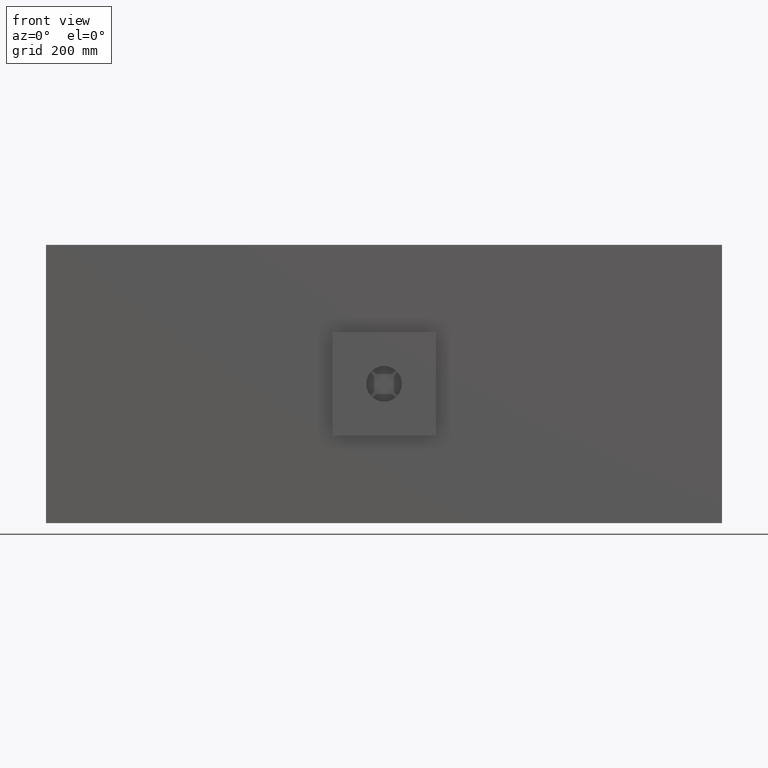
[diagram: clean part render]
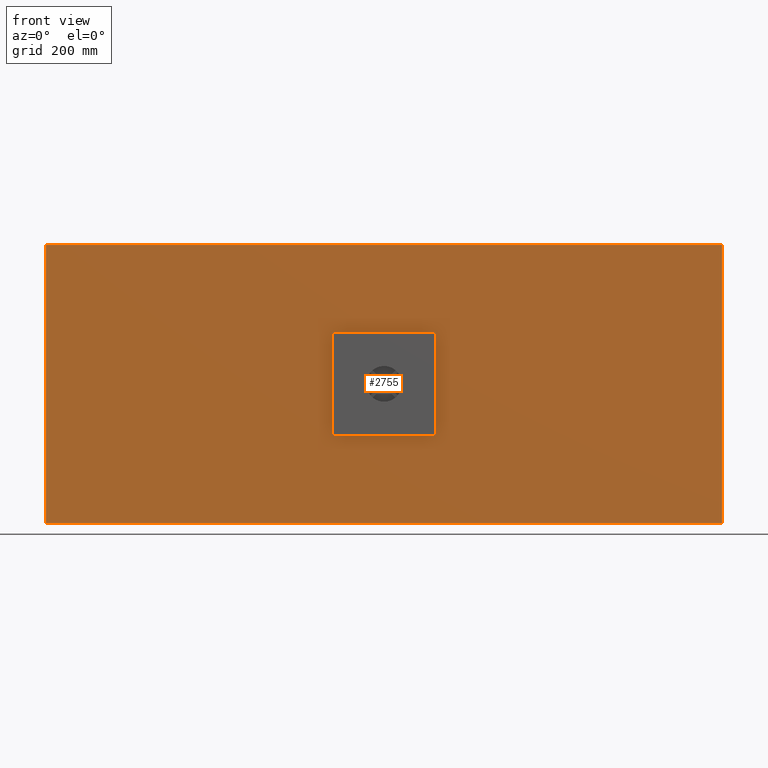
[diagram: same view with one face highlighted and labeled with its STEP entity id]
A machine part, front view. The second image highlights one B-rep face of the part: STEP entity #2755.
In plain terms, the highlighted planar face has unit normal (0, 1, 0).
Its self-contained STEP definition (entity closure, byte-faithful):
#58 = CARTESIAN_POINT ( 'NONE',  ( 849.9999999999997700, 0.0000000000000000000, -350.0000000000000600 ) ) ;
#114 = CARTESIAN_POINT ( 'NONE',  ( 77.49999999999984400, 0.0000000000000000000, 80.00000000000007100 ) ) ;
#181 = ORIENTED_EDGE ( 'NONE', *, *, #1748, .T. ) ;
#202 = VECTOR ( 'NONE', #2241, 1000.000000000000000 ) ;
#228 = LINE ( 'NONE', #1814, #2846 ) ;
#244 = CARTESIAN_POINT ( 'NONE',  ( -77.50000000000024200, 0.0000000000000000000, -77.49999999999997200 ) ) ;
#286 = CIRCLE ( 'NONE', #2512, 2.500000000000002200 ) ;
#312 = VERTEX_POINT ( 'NONE', #2172 ) ;
#331 = EDGE_LOOP ( 'NONE', ( #2837, #3267, #2650, #696 ) ) ;
#386 = VERTEX_POINT ( 'NONE', #114 ) ;
#387 = DIRECTION ( 'NONE',  ( 0.0000000000000000000, 0.0000000000000000000, 1.000000000000000000 ) ) ;
#406 = CIRCLE ( 'NONE', #917, 2.500000000000002200 ) ;
#409 = VERTEX_POINT ( 'NONE', #1502 ) ;
#420 = CARTESIAN_POINT ( 'NONE',  ( -850.0000000000002300, 0.0000000000000000000, -350.0000000000000600 ) ) ;
#423 = ORIENTED_EDGE ( 'NONE', *, *, #1584, .T. ) ;
#427 = DIRECTION ( 'NONE',  ( -1.000000000000000000, -0.0000000000000000000, -0.0000000000000000000 ) ) ;
#481 = FACE_OUTER_BOUND ( 'NONE', #331, .T. ) ;
#511 = DIRECTION ( 'NONE',  ( 0.0000000000000000000, 1.000000000000000000, 0.0000000000000000000 ) ) ;
#523 = DIRECTION ( 'NONE',  ( 0.0000000000000000000, 1.000000000000000000, 0.0000000000000000000 ) ) ;
#533 = CARTESIAN_POINT ( 'NONE',  ( -77.50000000000024200, 0.0000000000000000000, -79.99999999999997200 ) ) ;
#538 = CIRCLE ( 'NONE', #2204, 2.500000000000002200 ) ;
#550 = DIRECTION ( 'NONE',  ( -1.000000000000000000, -0.0000000000000000000, 1.790682297782510200E-016 ) ) ;
#565 = VERTEX_POINT ( 'NONE', #3068 ) ;
#597 = CIRCLE ( 'NONE', #2746, 2.499999999999988500 ) ;
#616 = AXIS2_PLACEMENT_3D ( 'NONE', #2362, #2818, #2697 ) ;
#630 = CARTESIAN_POINT ( 'NONE',  ( 77.49999999999984400, 0.0000000000000000000, 77.50000000000008500 ) ) ;
#638 = DIRECTION ( 'NONE',  ( 0.0000000000000000000, 1.000000000000000000, 0.0000000000000000000 ) ) ;
#648 = DIRECTION ( 'NONE',  ( 0.0000000000000000000, 0.0000000000000000000, 1.000000000000000000 ) ) ;
#696 = ORIENTED_EDGE ( 'NONE', *, *, #3049, .F. ) ;
#831 = VECTOR ( 'NONE', #550, 1000.000000000000000 ) ;
#858 = LINE ( 'NONE', #1390, #831 ) ;
#890 = CARTESIAN_POINT ( 'NONE',  ( -80.00000000000024200, 0.0000000000000000000, -77.49999999999997200 ) ) ;
#917 = AXIS2_PLACEMENT_3D ( 'NONE', #244, #523, #387 ) ;
#1118 = EDGE_CURVE ( 'NONE', #312, #409, #1654, .T. ) ;
#1186 = EDGE_CURVE ( 'NONE', #565, #386, #1279, .T. ) ;
#1205 = CARTESIAN_POINT ( 'NONE',  ( 79.99999999999984400, 0.0000000000000000000, 77.50000000000008500 ) ) ;
#1225 = LINE ( 'NONE', #420, #1445 ) ;
#1233 = VERTEX_POINT ( 'NONE', #2260 ) ;
#1264 = EDGE_CURVE ( 'NONE', #3041, #1852, #858, .T. ) ;
#1279 = LINE ( 'NONE', #1938, #1392 ) ;
#1330 = LINE ( 'NONE', #2235, #202 ) ;
#1390 = CARTESIAN_POINT ( 'NONE',  ( -77.50000000000024200, 0.0000000000000000000, -79.99999999999997200 ) ) ;
#1392 = VECTOR ( 'NONE', #3220, 1000.000000000000000 ) ;
#1445 = VECTOR ( 'NONE', #427, 1000.000000000000000 ) ;
#1454 = EDGE_CURVE ( 'NONE', #1762, #3041, #538, .T. ) ;
#1467 = ORIENTED_EDGE ( 'NONE', *, *, #2447, .T. ) ;
#1500 = DIRECTION ( 'NONE',  ( 0.0000000000000000000, 0.0000000000000000000, -1.000000000000000000 ) ) ;
#1501 = ORIENTED_EDGE ( 'NONE', *, *, #1454, .T. ) ;
#1502 = CARTESIAN_POINT ( 'NONE',  ( -850.0000000000001100, 0.0000000000000000000, 349.9999999999999400 ) ) ;
#1584 = EDGE_CURVE ( 'NONE', #1852, #2057, #406, .T. ) ;
#1589 = DIRECTION ( 'NONE',  ( 0.0000000000000000000, 1.000000000000000000, -0.0000000000000000000 ) ) ;
#1633 = VECTOR ( 'NONE', #3200, 1000.000000000000000 ) ;
#1643 = ORIENTED_EDGE ( 'NONE', *, *, #1186, .T. ) ;
#1654 = LINE ( 'NONE', #2705, #1633 ) ;
#1715 = EDGE_LOOP ( 'NONE', ( #1643, #1467, #1775, #1501, #2709, #423, #3145, #181 ) ) ;
#1723 = VERTEX_POINT ( 'NONE', #1205 ) ;
#1748 = EDGE_CURVE ( 'NONE', #1233, #565, #286, .T. ) ;
#1762 = VERTEX_POINT ( 'NONE', #2231 ) ;
#1775 = ORIENTED_EDGE ( 'NONE', *, *, #2240, .T. ) ;
#1814 = CARTESIAN_POINT ( 'NONE',  ( -80.00000000000024200, 0.0000000000000000000, -77.49999999999997200 ) ) ;
#1835 = VECTOR ( 'NONE', #3052, 1000.000000000000000 ) ;
#1852 = VERTEX_POINT ( 'NONE', #533 ) ;
#1859 = DIRECTION ( 'NONE',  ( 0.0000000000000000000, 0.0000000000000000000, 1.000000000000000000 ) ) ;
#1930 = VERTEX_POINT ( 'NONE', #58 ) ;
#1938 = CARTESIAN_POINT ( 'NONE',  ( -77.50000000000024200, 0.0000000000000000000, 80.00000000000008500 ) ) ;
#1975 = CARTESIAN_POINT ( 'NONE',  ( -77.50000000000024200, 0.0000000000000000000, 77.50000000000008500 ) ) ;
#2057 = VERTEX_POINT ( 'NONE', #890 ) ;
#2068 = LINE ( 'NONE', #2586, #1835 ) ;
#2172 = CARTESIAN_POINT ( 'NONE',  ( -850.0000000000002300, 0.0000000000000000000, -350.0000000000000600 ) ) ;
#2204 = AXIS2_PLACEMENT_3D ( 'NONE', #2894, #1589, #1500 ) ;
#2231 = CARTESIAN_POINT ( 'NONE',  ( 79.99999999999980100, 0.0000000000000000000, -77.50000000000001400 ) ) ;
#2235 = CARTESIAN_POINT ( 'NONE',  ( -850.0000000000001100, 0.0000000000000000000, 349.9999999999999400 ) ) ;
#2240 = EDGE_CURVE ( 'NONE', #1723, #1762, #2068, .T. ) ;
#2241 = DIRECTION ( 'NONE',  ( 1.000000000000000000, 0.0000000000000000000, 0.0000000000000000000 ) ) ;
#2251 = CARTESIAN_POINT ( 'NONE',  ( 77.49999999999978700, 0.0000000000000000000, -80.00000000000000000 ) ) ;
#2260 = CARTESIAN_POINT ( 'NONE',  ( -80.00000000000024200, 0.0000000000000000000, 77.50000000000008500 ) ) ;
#2267 = VERTEX_POINT ( 'NONE', #2673 ) ;
#2320 = VECTOR ( 'NONE', #2971, 1000.000000000000000 ) ;
#2322 = PLANE ( 'NONE',  #616 ) ;
#2362 = CARTESIAN_POINT ( 'NONE',  ( -850.0000000000001100, 0.0000000000000000000, 349.9999999999999400 ) ) ;
#2447 = EDGE_CURVE ( 'NONE', #386, #1723, #597, .T. ) ;
#2512 = AXIS2_PLACEMENT_3D ( 'NONE', #1975, #511, #3184 ) ;
#2586 = CARTESIAN_POINT ( 'NONE',  ( 79.99999999999978700, 0.0000000000000000000, -77.50000000000000000 ) ) ;
#2634 = CARTESIAN_POINT ( 'NONE',  ( 849.9999999999997700, 0.0000000000000000000, -350.0000000000000600 ) ) ;
#2650 = ORIENTED_EDGE ( 'NONE', *, *, #2791, .F. ) ;
#2673 = CARTESIAN_POINT ( 'NONE',  ( 849.9999999999997700, 0.0000000000000000000, 349.9999999999999400 ) ) ;
#2697 = DIRECTION ( 'NONE',  ( 0.0000000000000000000, -0.0000000000000000000, 1.000000000000000000 ) ) ;
#2705 = CARTESIAN_POINT ( 'NONE',  ( -850.0000000000002300, 0.0000000000000000000, -350.0000000000000600 ) ) ;
#2709 = ORIENTED_EDGE ( 'NONE', *, *, #1264, .T. ) ;
#2746 = AXIS2_PLACEMENT_3D ( 'NONE', #630, #638, #648 ) ;
#2755 = ADVANCED_FACE ( 'NONE', ( #3087, #481 ), #2322, .F. ) ;
#2791 = EDGE_CURVE ( 'NONE', #2267, #1930, #3132, .T. ) ;
#2818 = DIRECTION ( 'NONE',  ( 0.0000000000000000000, 1.000000000000000000, 0.0000000000000000000 ) ) ;
#2837 = ORIENTED_EDGE ( 'NONE', *, *, #1118, .F. ) ;
#2846 = VECTOR ( 'NONE', #1859, 1000.000000000000000 ) ;
#2894 = CARTESIAN_POINT ( 'NONE',  ( 77.49999999999978700, 0.0000000000000000000, -77.50000000000000000 ) ) ;
#2971 = DIRECTION ( 'NONE',  ( -0.0000000000000000000, -0.0000000000000000000, -1.000000000000000000 ) ) ;
#3041 = VERTEX_POINT ( 'NONE', #2251 ) ;
#3049 = EDGE_CURVE ( 'NONE', #409, #2267, #1330, .T. ) ;
#3052 = DIRECTION ( 'NONE',  ( -3.581364595565019400E-016, -0.0000000000000000000, -1.000000000000000000 ) ) ;
#3068 = CARTESIAN_POINT ( 'NONE',  ( -77.50000000000024200, 0.0000000000000000000, 80.00000000000008500 ) ) ;
#3087 = FACE_BOUND ( 'NONE', #1715, .T. ) ;
#3129 = EDGE_CURVE ( 'NONE', #2057, #1233, #228, .T. ) ;
#3132 = LINE ( 'NONE', #2634, #2320 ) ;
#3145 = ORIENTED_EDGE ( 'NONE', *, *, #3129, .T. ) ;
#3184 = DIRECTION ( 'NONE',  ( 0.0000000000000000000, 0.0000000000000000000, 1.000000000000000000 ) ) ;
#3200 = DIRECTION ( 'NONE',  ( 1.586032892321652200E-016, 0.0000000000000000000, 1.000000000000000000 ) ) ;
#3220 = DIRECTION ( 'NONE',  ( 1.000000000000000000, 0.0000000000000000000, -8.953411488912548500E-017 ) ) ;
#3264 = EDGE_CURVE ( 'NONE', #1930, #312, #1225, .T. ) ;
#3267 = ORIENTED_EDGE ( 'NONE', *, *, #3264, .F. ) ;